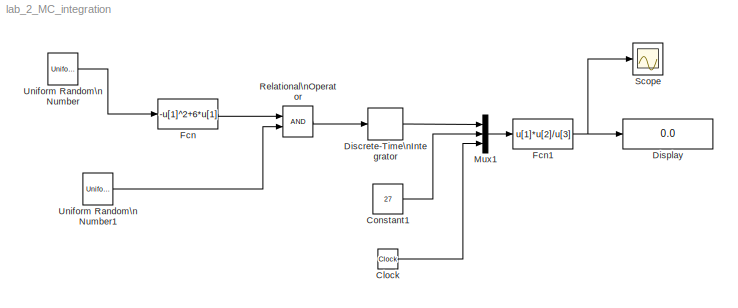
MODEL lab_2_MC_integration
KIND model
BLOCK [Clock] Clock
  Decimation = 10
BLOCK [Constant] Constant1
  OutDataType = fixdt(1, 16)
  OutScaling = 2^0
  Value = 27
BLOCK [DiscreteIntegrator] Discrete-Time\nIntegrator
  ExternalReset = none
  ICPrevOutput = DiscIntNeverNeededParam
  ICPrevScaledInput = DiscIntNeverNeededParam
  InitialConditionSource = internal
  IntegratorMethod = Integration: Forward Euler
  OutDataType = fixdt(1, 16)
  OutDataTypeMode = double
  OutDataTypeStr = double
  OutScaling = 2^0
  Ports = [1, 1]
BLOCK [Display] Display
  Decimation = 1
  Lockdown = off
  Ports = [1]
BLOCK [Fcn] Fcn
  Expr = -u[1]^2+6*u[1]
BLOCK [Fcn] Fcn1
  Expr = u[1]*u[2]/u[3]
BLOCK [Mux] Mux1
  DisplayOption = bar
  Inputs = 3
  Ports = [3, 1]
BLOCK [RelationalOperator] Relational\nOperator
  InputSameDT = off
  LogicDataType = fixdt(0, 8)
  LogicOutDataTypeMode = boolean
  OutDataTypeStr = boolean
BLOCK [Scope] Scope
  DataFormat = StructureWithTime
  Floating = off
  NumInputPorts = 1
  Ports = [1]
  SampleTime = 0
  YMax = 105
  YMin = 0
BLOCK [UniformRandomNumber] Uniform Random\nNumber
  Maximum = 5
  Minimum = 2
  SampleTime = 0
  Seed = 5
BLOCK [UniformRandomNumber] Uniform Random\nNumber1
  Maximum = 9
  Minimum = 0
  SampleTime = 0
LINE Clock:1 -> Mux1:3
LINE Constant1:1 -> Mux1:2
LINE Discrete-Time\nIntegrator:1 -> Mux1:1
NET Fcn1:1 -> Display:1, Scope:1
LINE Fcn:1 -> Relational\nOperator:1
LINE Mux1:1 -> Fcn1:1
LINE Relational\nOperator:1 -> Discrete-Time\nIntegrator:1
LINE Uniform Random\nNumber1:1 -> Relational\nOperator:2
LINE Uniform Random\nNumber:1 -> Fcn:1
note: NET lines group one-source signal fan-out (src -> all destinations, sorted); 1:1 wires keep LINE
